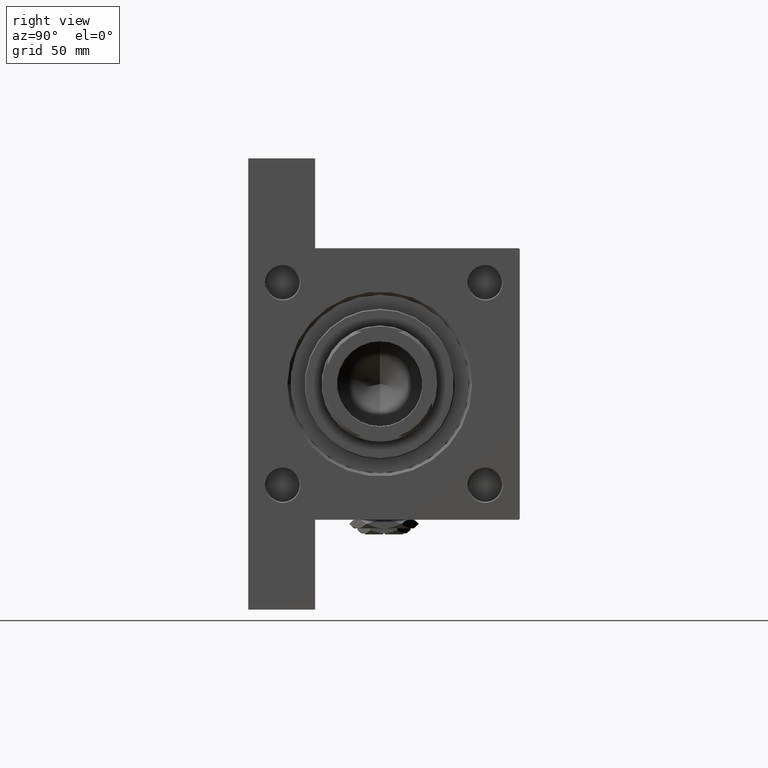
[diagram: clean part render]
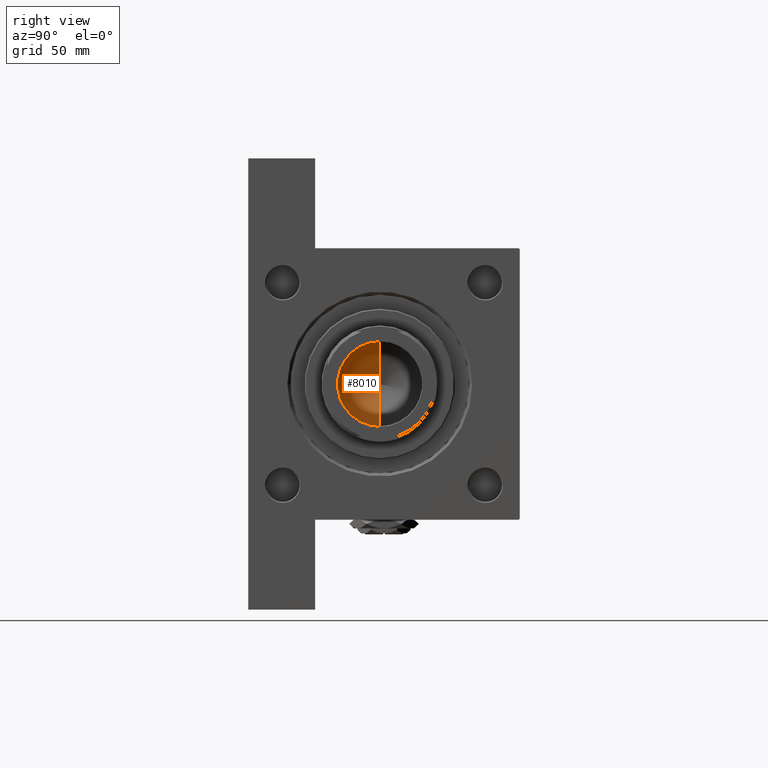
[diagram: same view with one face highlighted and labeled with its STEP entity id]
A machine part, right view. The second image highlights one B-rep face of the part: STEP entity #8010.
In plain terms, the highlighted conical surface has half-angle 59 deg.
Its self-contained STEP definition (entity closure, byte-faithful):
#1035 = DIRECTION ( 'NONE',  ( -0.8571673007021115565, 1.049727191138617710E-16, 0.5150380749100554878 ) ) ;
#1327 = FACE_OUTER_BOUND ( 'NONE', #25974, .T. ) ;
#4574 = LINE ( 'NONE', #20475, #16885 ) ;
#4706 = AXIS2_PLACEMENT_3D ( 'NONE', #32850, #13422, #16729 ) ;
#4767 = CIRCLE ( 'NONE', #10390, 20.24999999999998934 ) ;
#7698 = DIRECTION ( 'NONE',  ( 1.000000000000000000, 0.000000000000000000, 0.000000000000000000 ) ) ;
#8010 = ADVANCED_FACE ( 'NONE', ( #1327 ), #26475, .F. ) ;
#9109 = ORIENTED_EDGE ( 'NONE', *, *, #37291, .T. ) ;
#10169 = EDGE_CURVE ( 'NONE', #27204, #27722, #4574, .T. ) ;
#10390 = AXIS2_PLACEMENT_3D ( 'NONE', #31157, #26878, #7698 ) ;
#12753 = CARTESIAN_POINT ( 'NONE',  ( 20.24999999999998934, 0.000000000000000000, 117.0000000000000142 ) ) ;
#13422 = DIRECTION ( 'NONE',  ( -0.000000000000000000, -0.000000000000000000, 1.000000000000000000 ) ) ;
#16729 = DIRECTION ( 'NONE',  ( 1.000000000000000000, 0.000000000000000000, 0.000000000000000000 ) ) ;
#16885 = VECTOR ( 'NONE', #1035, 1000.000000000000000 ) ;
#19198 = VECTOR ( 'NONE', #38340, 1000.000000000000000 ) ;
#20475 = CARTESIAN_POINT ( 'NONE',  ( -20.24999999999998934, 2.479909768273389117E-15, 117.0000000000000142 ) ) ;
#22934 = LINE ( 'NONE', #12753, #19198 ) ;
#24585 = ORIENTED_EDGE ( 'NONE', *, *, #10169, .F. ) ;
#25974 = EDGE_LOOP ( 'NONE', ( #24585, #9109, #46752 ) ) ;
#26475 = CONICAL_SURFACE ( 'NONE', #4706, 20.24999999999998934, 1.029744258676652979 ) ;
#26878 = DIRECTION ( 'NONE',  ( -0.000000000000000000, -0.000000000000000000, 1.000000000000000000 ) ) ;
#27204 = VERTEX_POINT ( 'NONE', #48302 ) ;
#27722 = VERTEX_POINT ( 'NONE', #48184 ) ;
#31157 = CARTESIAN_POINT ( 'NONE',  ( 0.000000000000000000, 0.000000000000000000, 117.0000000000000142 ) ) ;
#32850 = CARTESIAN_POINT ( 'NONE',  ( 0.000000000000000000, 0.000000000000000000, 117.0000000000000142 ) ) ;
#35458 = CARTESIAN_POINT ( 'NONE',  ( 20.24999999999998934, 0.000000000000000000, 117.0000000000000142 ) ) ;
#37291 = EDGE_CURVE ( 'NONE', #27204, #43763, #22934, .T. ) ;
#38340 = DIRECTION ( 'NONE',  ( 0.8571673007021115565, 0.000000000000000000, 0.5150380749100554878 ) ) ;
#39201 = EDGE_CURVE ( 'NONE', #43763, #27722, #4767, .T. ) ;
#43763 = VERTEX_POINT ( 'NONE', #35458 ) ;
#46752 = ORIENTED_EDGE ( 'NONE', *, *, #39201, .T. ) ;
#48184 = CARTESIAN_POINT ( 'NONE',  ( -20.24999999999998934, 2.479909768273389117E-15, 117.0000000000000142 ) ) ;
#48302 = CARTESIAN_POINT ( 'NONE',  ( -1.584115414415908206E-14, 0.000000000000000000, 104.8325724646918928 ) ) ;